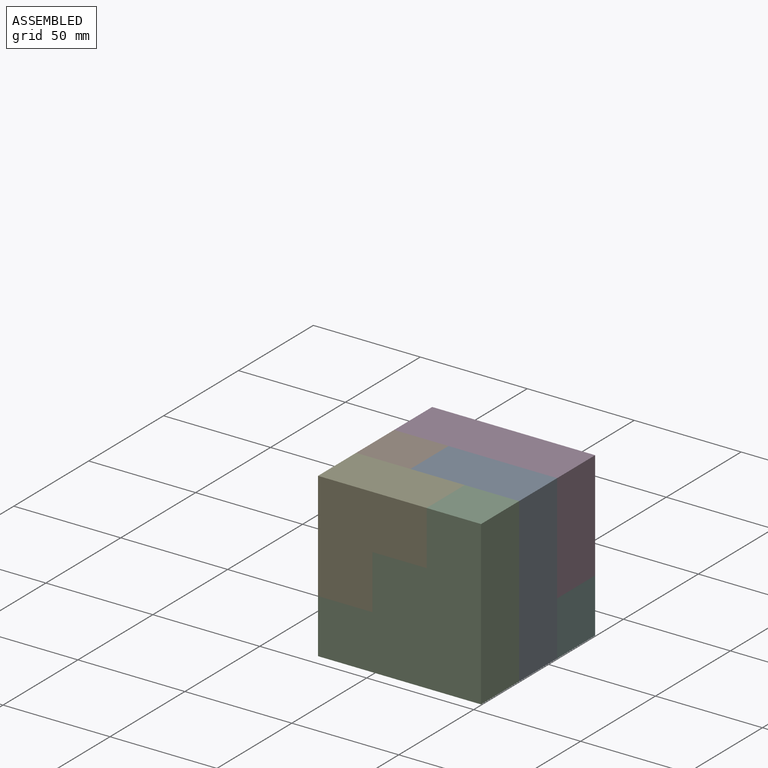
[diagram: assembled view]
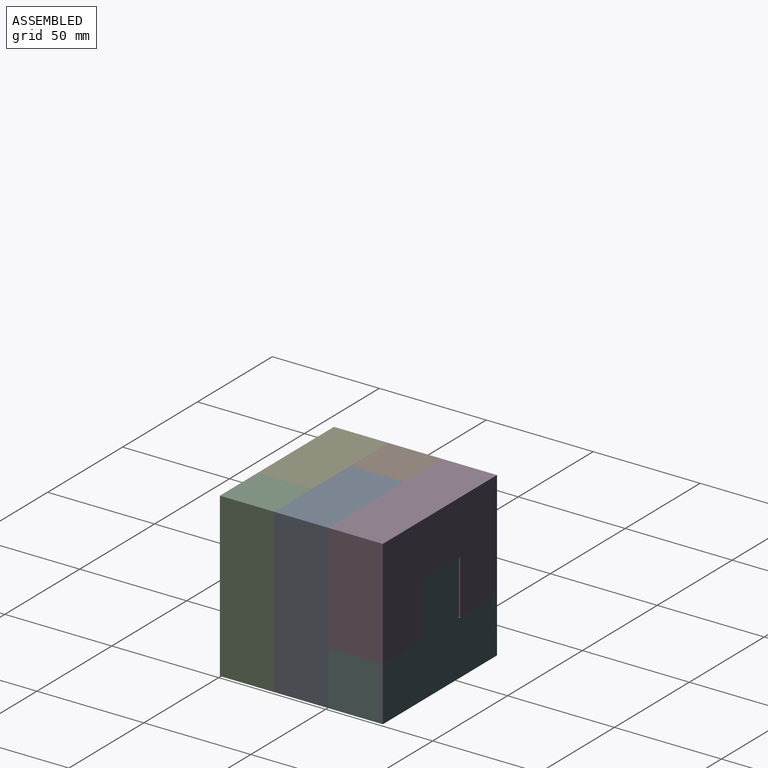
[diagram: assembled view, second angle]
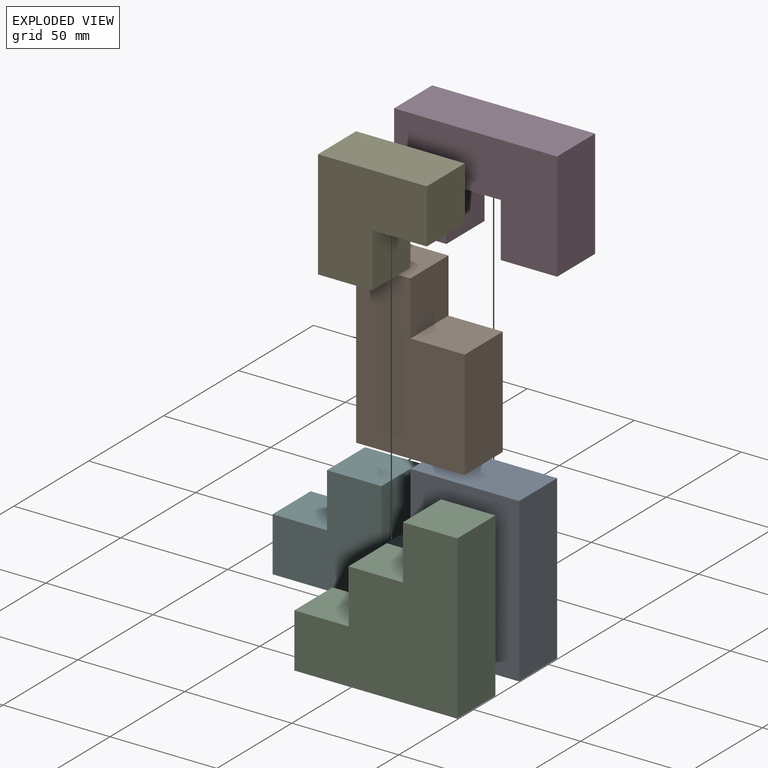
[diagram: exploded view]
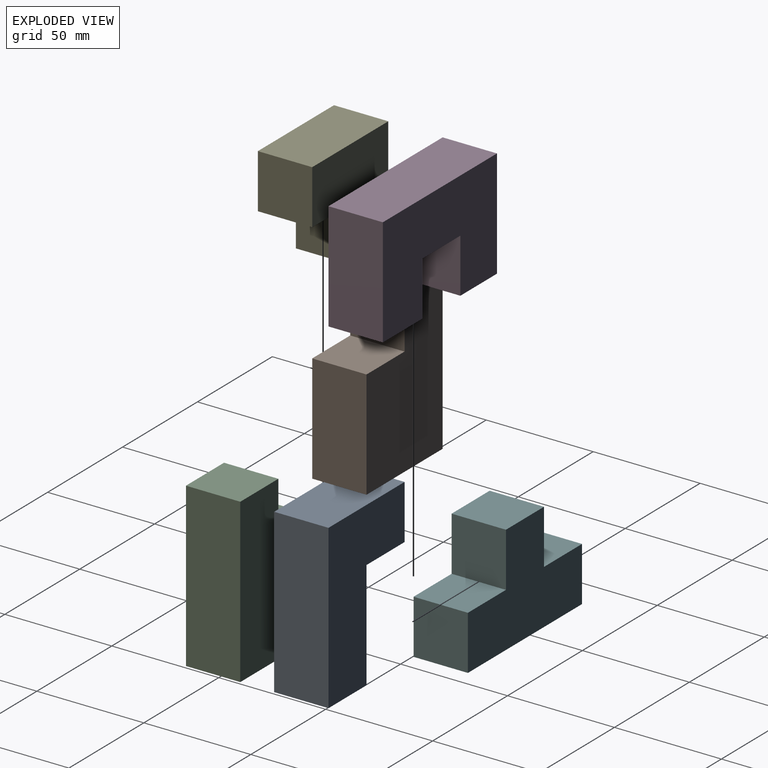
[diagram: exploded view, second angle]
ASSEMBLY  parts=6 mates=17
PART A: 8 faces, bbox 50.8x25.4x76.2 mm
  f0: plane 25.4x25.4mm, normal (0,0,-1), area 645.2mm2, adj f1,f5,f6,f7
  f1: plane 76.2x25.4mm, normal (1,0,0), area 1935.5mm2, adj f0,f2,f6,f7
  f2: plane 50.8x25.4mm, normal (0,0,1), area 1290.3mm2, adj f1,f3,f6,f7
  f3: plane 25.4x25.4mm, normal (-1,0,0), area 645.2mm2, adj f2,f4,f6,f7
  f4: plane 25.4x25.4mm, normal (0,0,-1), area 645.2mm2, adj f3,f5,f6,f7
  f5: plane 50.8x25.4mm, normal (-1,0,0), area 1290.3mm2, adj f0,f4,f6,f7
  f6: plane 76.2x50.8mm, normal (0,-1,0), area 2580.6mm2, adj f0,f1,f2,f3,f4,f5
  f7: plane 76.2x50.8mm, normal (0,1,0), area 2580.6mm2, adj f0,f1,f2,f3,f4,f5
PART B: 8 faces, bbox 50.8x25.4x76.2 mm
  f0: plane 50.8x25.4mm, normal (1,0,0), area 1290.3mm2, adj f1,f5,f6,f7
  f1: plane 25.4x25.4mm, normal (0,0,1), area 645.2mm2, adj f0,f2,f6,f7
  f2: plane 25.4x25.4mm, normal (1,0,0), area 645.2mm2, adj f1,f3,f6,f7
  f3: plane 25.4x25.4mm, normal (0,0,1), area 645.2mm2, adj f2,f4,f6,f7
  f4: plane 76.2x25.4mm, normal (-1,0,0), area 1935.5mm2, adj f3,f5,f6,f7
  f5: plane 50.8x25.4mm, normal (0,0,-1), area 1290.3mm2, adj f0,f4,f6,f7
  f6: plane 76.2x50.8mm, normal (0,-1,0), area 3225.8mm2, adj f0,f1,f2,f3,f4,f5
  f7: plane 76.2x50.8mm, normal (0,1,0), area 3225.8mm2, adj f0,f1,f2,f3,f4,f5
PART C: 10 faces, bbox 76.2x25.4x76.2 mm
  f0: plane 25.4x25.4mm, normal (-1,0,0), area 645.2mm2, adj f1,f7,f8,f9
  f1: plane 76.2x25.4mm, normal (0,0,-1), area 1935.5mm2, adj f0,f2,f8,f9
  f2: plane 76.2x25.4mm, normal (1,0,0), area 1935.5mm2, adj f1,f3,f8,f9
  f3: plane 25.4x25.4mm, normal (0,0,1), area 645.2mm2, adj f2,f4,f8,f9
  f4: plane 25.4x25.4mm, normal (-1,0,0), area 645.2mm2, adj f3,f5,f8,f9
  f5: plane 25.4x25.4mm, normal (0,0,1), area 645.2mm2, adj f4,f6,f8,f9
  f6: plane 25.4x25.4mm, normal (-1,0,0), area 645.2mm2, adj f5,f7,f8,f9
  f7: plane 25.4x25.4mm, normal (0,0,1), area 645.2mm2, adj f0,f6,f8,f9
  f8: plane 76.2x76.2mm, normal (0,-1,0), area 3871mm2, adj f0,f1,f2,f3,f4,f5,f6,f7
  f9: plane 76.2x76.2mm, normal (0,1,0), area 3871mm2, adj f0,f1,f2,f3,f4,f5,f6,f7
PART D: 10 faces, bbox 76.2x25.4x50.8 mm
  f0: plane 50.8x25.4mm, normal (-1,0,0), area 1290.3mm2, adj f1,f7,f8,f9
  f1: plane 25.4x24.43mm, normal (0,0,-1), area 620.6mm2, adj f0,f2,f8,f9
  f2: plane 25.4x25.4mm, normal (1,0,0), area 645.2mm2, adj f1,f3,f8,f9
  f3: plane 25.4x25.4mm, normal (0,0,-1), area 645.2mm2, adj f2,f4,f8,f9
  f4: plane 25.4x25.4mm, normal (-1,0,0), area 645.2mm2, adj f3,f5,f8,f9
  f5: plane 26.37x25.4mm, normal (0,0,-1), area 669.7mm2, adj f4,f6,f8,f9
  f6: plane 50.8x25.4mm, normal (1,0,0), area 1290.3mm2, adj f5,f7,f8,f9
  f7: plane 76.2x25.4mm, normal (0,0,1), area 1935.5mm2, adj f0,f6,f8,f9
  f8: plane 76.2x50.8mm, normal (0,-1,0), area 3225.8mm2, adj f0,f1,f2,f3,f4,f5,f6,f7
  f9: plane 76.2x50.8mm, normal (0,1,0), area 3225.8mm2, adj f0,f1,f2,f3,f4,f5,f6,f7
PART E: 8 faces, bbox 50.8x25.4x50.8 mm
  f0: plane 25.4x25.4mm, normal (0,0,-1), area 645.2mm2, adj f1,f5,f6,f7
  f1: plane 25.4x25.4mm, normal (1,0,0), area 645.2mm2, adj f0,f2,f6,f7
  f2: plane 25.4x25.4mm, normal (0,0,-1), area 645.2mm2, adj f1,f3,f6,f7
  f3: plane 25.4x25.4mm, normal (1,0,0), area 645.2mm2, adj f2,f4,f6,f7
  f4: plane 50.8x25.4mm, normal (0,0,1), area 1290.3mm2, adj f3,f5,f6,f7
  f5: plane 50.8x25.4mm, normal (-1,0,0), area 1290.3mm2, adj f0,f4,f6,f7
  f6: plane 50.8x50.8mm, normal (0,-1,0), area 1935.5mm2, adj f0,f1,f2,f3,f4,f5
  f7: plane 50.8x50.8mm, normal (0,1,0), area 1935.5mm2, adj f0,f1,f2,f3,f4,f5
PART F: 10 faces, bbox 76.2x25.4x50.8 mm
  f0: plane 25.4x25.4mm, normal (0,0,1), area 645.2mm2, adj f1,f7,f8,f9
  f1: plane 25.4x25.4mm, normal (-1,0,0), area 645.2mm2, adj f0,f2,f8,f9
  f2: plane 76.2x25.4mm, normal (0,0,-1), area 1935.5mm2, adj f1,f3,f8,f9
  f3: plane 25.4x25.4mm, normal (1,0,0), area 645.2mm2, adj f2,f4,f8,f9
  f4: plane 25.4x25.4mm, normal (0,0,1), area 645.2mm2, adj f3,f5,f8,f9
  f5: plane 25.4x25.4mm, normal (1,0,0), area 645.2mm2, adj f4,f6,f8,f9
  f6: plane 25.4x25.4mm, normal (0,0,1), area 645.2mm2, adj f5,f7,f8,f9
  f7: plane 25.4x25.4mm, normal (-1,0,0), area 645.2mm2, adj f0,f6,f8,f9
  f8: plane 76.2x50.8mm, normal (0,-1,0), area 2580.6mm2, adj f0,f1,f2,f3,f4,f5,f6,f7
  f9: plane 76.2x50.8mm, normal (0,1,0), area 2580.6mm2, adj f0,f1,f2,f3,f4,f5,f6,f7
PLACE A t=(26.67,2.79,47.5)mm
PLACE B t=(-24.13,2.79,47.5)mm
PLACE C t=(52.07,-22.61,47.5)mm
PLACE D t=(-24.13,28.19,72.9)mm
PLACE E t=(-24.13,-22.61,72.9)mm
PLACE F t=(-24.13,28.19,47.5)mm
MATE planar F.f1 <-> D.f0  axis (-1,0,0) through (-24.13,15.49,60.2)mm
MATE planar C.f4 <-> E.f3  axis (-1,0,0) through (26.67,-35.31,111)mm
MATE planar D.f9 <-> F.f9  axis (0,1,0) through (14.16,28.19,100.84)mm
MATE planar E.f1 <-> C.f6  axis (1,0,0) through (1.27,-35.31,85.6)mm
MATE planar C.f9 <-> A.f6  axis (0,1,0) through (26.67,-22.61,98.3)mm
MATE planar E.f4 <-> A.f2  axis (0,0,1) through (1.27,-35.31,123.7)mm
MATE planar E.f0 <-> C.f7  axis (0,0,-1) through (-11.43,-35.31,72.9)mm
MATE planar D.f7 <-> A.f2  axis (0,0,1) through (13.97,15.49,123.7)mm
MATE planar B.f1 <-> A.f4  axis (0,0,1) through (13.97,-9.91,98.3)mm
MATE planar F.f8 <-> B.f7  axis (0,-1,0) through (13.97,2.79,66.55)mm
MATE planar D.f3 <-> F.f6  axis (0,0,-1) through (13,15.49,98.3)mm
MATE planar E.f7 <-> B.f6  axis (0,1,0) through (26.67,-22.61,98.3)mm
MATE planar D.f0 <-> B.f4  axis (-1,0,0) through (-24.13,15.49,98.3)mm
MATE planar C.f2 <-> A.f1  axis (1,0,0) through (52.07,-35.31,85.6)mm
MATE planar A.f3 <-> B.f2  axis (-1,0,0) through (1.27,-9.91,111)mm
MATE planar E.f6 <-> C.f8  axis (0,-1,0) through (-2.96,-48.01,102.53)mm
MATE planar A.f7 <-> B.f7  axis (0,1,0) through (33.02,2.79,91.95)mm
